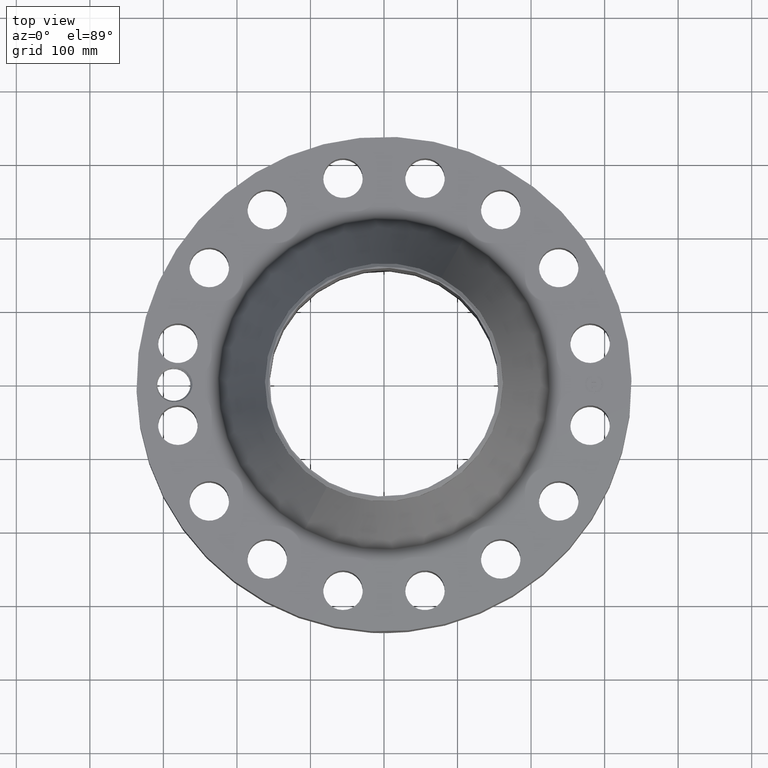
[diagram: clean part render]
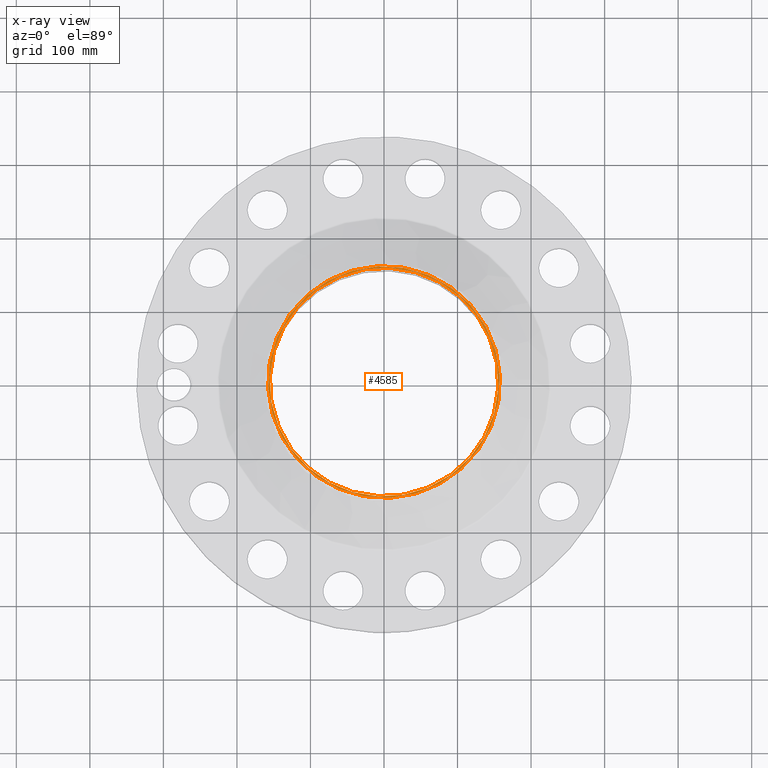
[diagram: x-ray — body ghosted, one internal face saturated and labeled with its STEP entity id]
A machine part, top view, then the same camera in x-ray: the body is ghosted and one INTERNAL B-rep face — a face not visible from any outside direction — is saturated and labeled: STEP entity #4585.
In plain terms, the highlighted planar face has unit normal (0, 0, -1).
Its self-contained STEP definition (entity closure, byte-faithful):
#3380=AXIS2_PLACEMENT_3D('Circle Axis2P3D',#3378,#3379,$) ;
#3448=AXIS2_PLACEMENT_3D('Circle Axis2P3D',#3446,#3447,$) ;
#4561=AXIS2_PLACEMENT_3D('Plane Axis2P3D',#4558,#4559,#4560) ;
#4565=AXIS2_PLACEMENT_3D('Circle Axis2P3D',#4563,#4564,$) ;
#4574=AXIS2_PLACEMENT_3D('Circle Axis2P3D',#4572,#4573,$) ;
#3378=CARTESIAN_POINT('Axis2P3D Location',(0.,0.,11.37)) ;
#3382=CARTESIAN_POINT('Vertex',(2.93648142396,5.3751931916,11.37)) ;
#3384=CARTESIAN_POINT('Vertex',(-2.93648142396,-5.3751931916,11.37)) ;
#3446=CARTESIAN_POINT('Axis2P3D Location',(0.,0.,11.37)) ;
#4558=CARTESIAN_POINT('Axis2P3D Location',(0.,6.37500000003,11.37)) ;
#4563=CARTESIAN_POINT('Axis2P3D Location',(0.,0.,11.37)) ;
#4567=CARTESIAN_POINT('Vertex',(2.97423146637,-5.44429418073,11.37)) ;
#4569=CARTESIAN_POINT('Vertex',(-2.97423146637,5.44429418073,11.37)) ;
#4572=CARTESIAN_POINT('Axis2P3D Location',(0.,0.,11.37)) ;
#3379=DIRECTION('Axis2P3D Direction',(0.,0.,-0.0393700787402)) ;
#3447=DIRECTION('Axis2P3D Direction',(0.,0.,-0.0393700787402)) ;
#4559=DIRECTION('Axis2P3D Direction',(0.,0.,-0.0393700787402)) ;
#4560=DIRECTION('Axis2P3D XDirection',(0.0393700787402,0.,0.)) ;
#4564=DIRECTION('Axis2P3D Direction',(0.,0.,-0.0393700787402)) ;
#4573=DIRECTION('Axis2P3D Direction',(0.,0.,-0.0393700787402)) ;
#4578=ORIENTED_EDGE('',*,*,#4571,.T.) ;
#4579=ORIENTED_EDGE('',*,*,#4576,.T.) ;
#4582=ORIENTED_EDGE('',*,*,#3450,.T.) ;
#4583=ORIENTED_EDGE('',*,*,#3386,.T.) ;
#4584=FACE_BOUND('',#4581,.T.) ;
#4585=ADVANCED_FACE('PartBody',(#4580,#4584),#4562,.F.) ;
#3381=CIRCLE('generated circle',#3380,6.12500000002) ;
#3449=CIRCLE('generated circle',#3448,6.12500000002) ;
#4566=CIRCLE('generated circle',#4565,6.2037401575) ;
#4575=CIRCLE('generated circle',#4574,6.2037401575) ;
#3386=EDGE_CURVE('',#3383,#3385,#3381,.T.) ;
#3450=EDGE_CURVE('',#3385,#3383,#3449,.T.) ;
#4571=EDGE_CURVE('',#4568,#4570,#4566,.F.) ;
#4576=EDGE_CURVE('',#4570,#4568,#4575,.F.) ;
#4577=EDGE_LOOP('',(#4578,#4579)) ;
#4581=EDGE_LOOP('',(#4582,#4583)) ;
#4580=FACE_OUTER_BOUND('',#4577,.T.) ;
#4562=PLANE('',#4561) ;
#3383=VERTEX_POINT('',#3382) ;
#3385=VERTEX_POINT('',#3384) ;
#4568=VERTEX_POINT('',#4567) ;
#4570=VERTEX_POINT('',#4569) ;